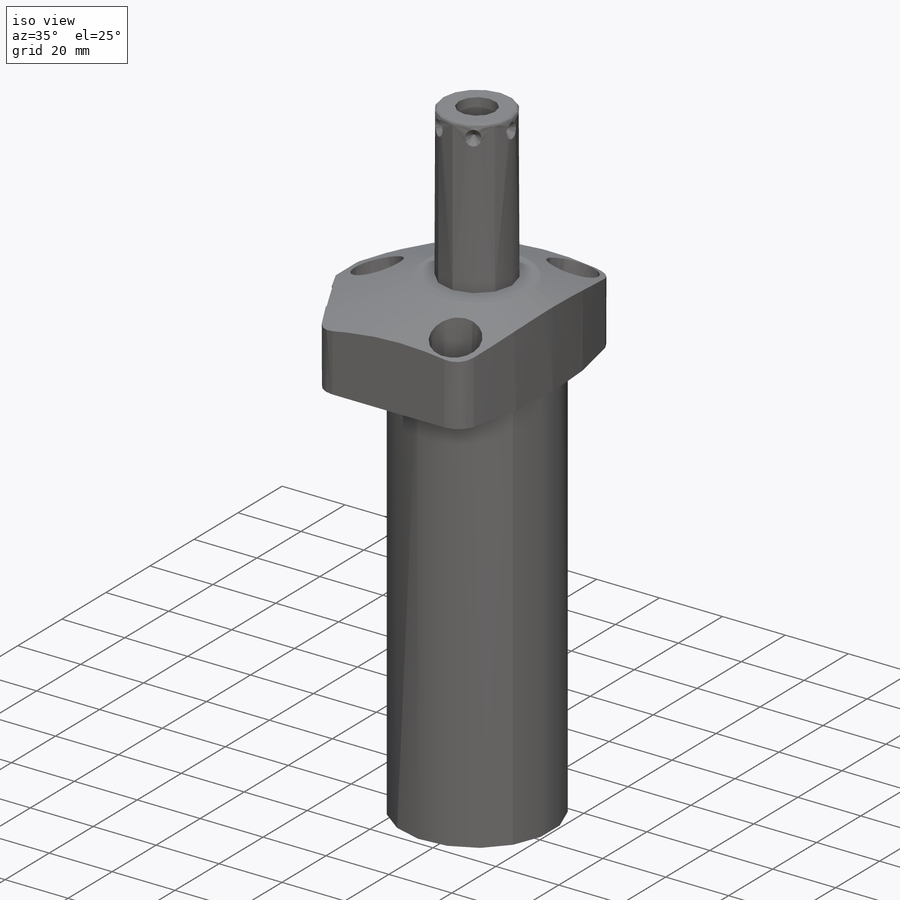
[diagram: iso view]
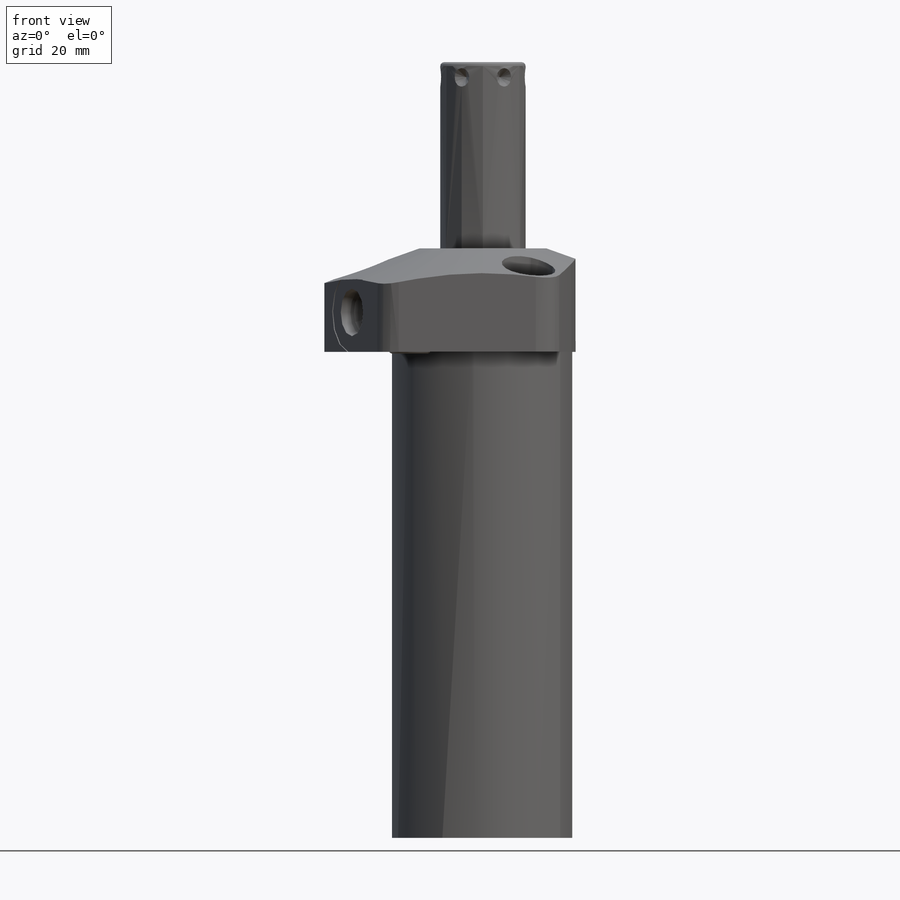
[diagram: front view]
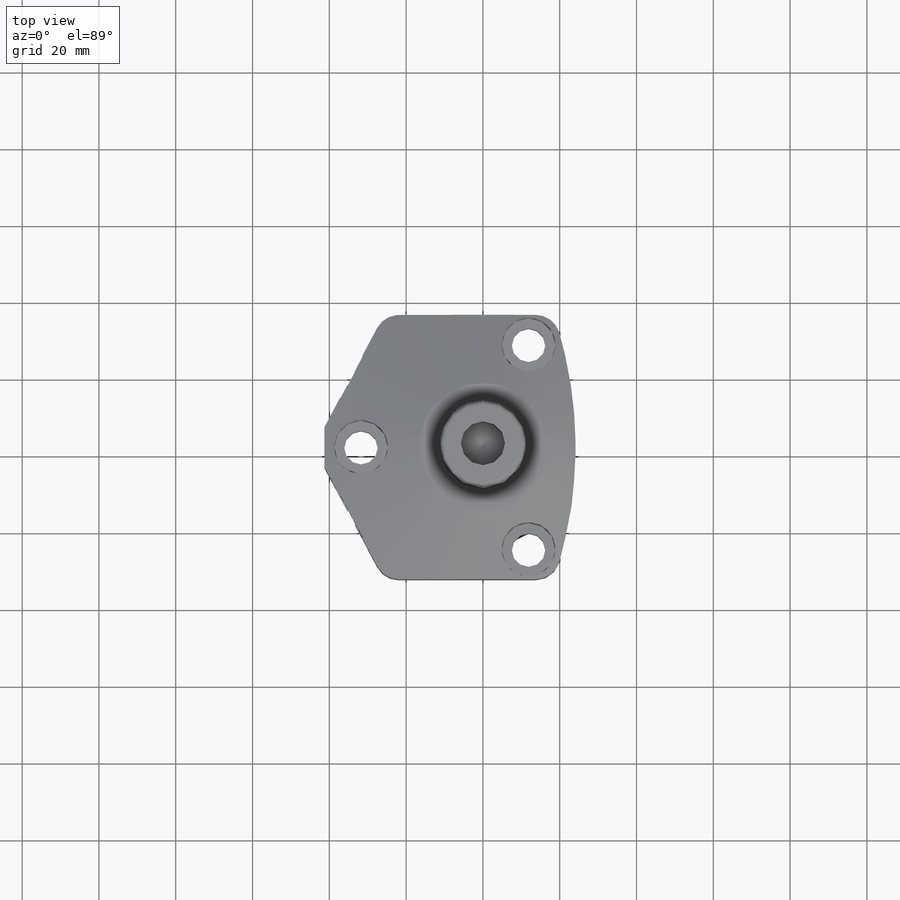
[diagram: top view]
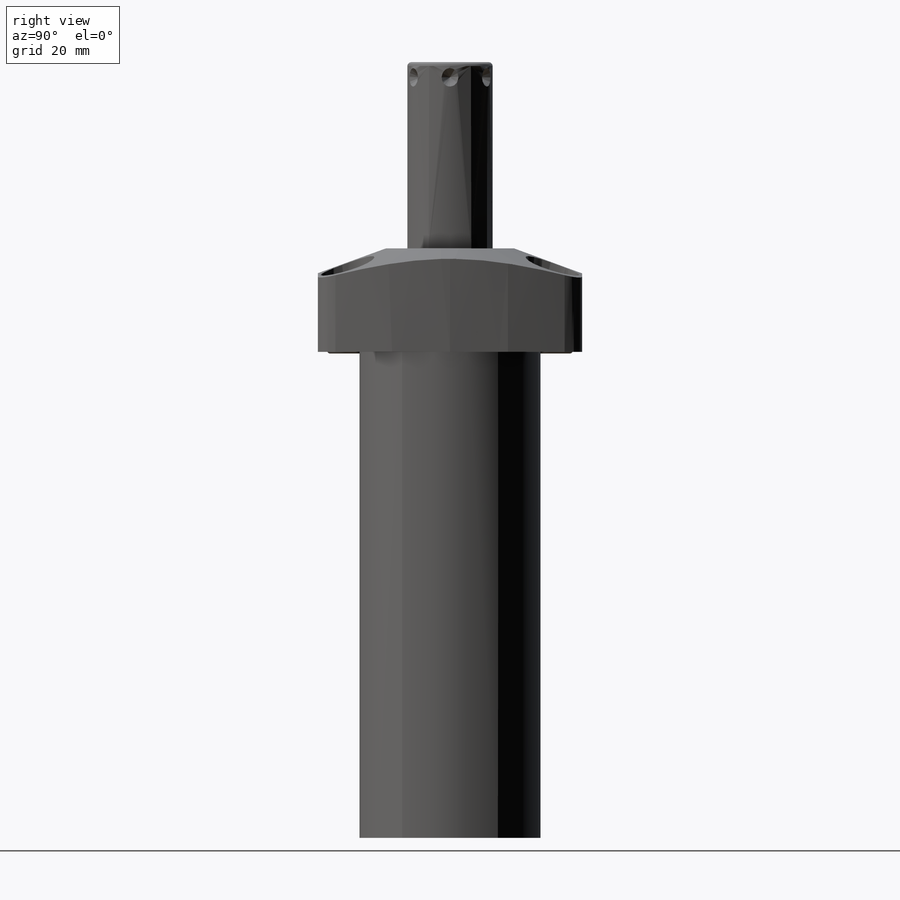
[diagram: right view]
SOLIDWORKS PART (.sldprt)
format: sldprt  version: not decoded by parser v0  size: 501,248 bytes
history: native  units: mm
features: sketch x16, cut_revolve x6, cut_extrude x5, plane x4, revolve x3, fillet x3, mirror x2, material x1, pattern_circular x1, hole x1 (+13 scaffold rows collapsed)
feature tree (55):
  scaffold x13  (default folders/planes/origin — collapsed)
  material  "Alloy Steel"
  sketch  "Sketch1"  dims[D1=153.543mm D2=26.9748mm D3=88.9mm D4=47.371mm]
  revolve  "Revolve1"  Angle=360deg
  sketch  "Sketch2"  dims[D1=68.834mm D2=0.0mm]
  cut_extrude  "Cut-Extrude1"  [1 undecoded]
  sketch  "Sketch3"  dims[c1.D1=~128.32842mm c2.D1=28.0deg c2.D2=38.8874mm c2.D3=0.0mm]
  cut_extrude  "Cut-Extrude2"  Depth=0mm
  sketch  "S2D0002"  dims[D3=106.3752mm D1=82.2452mm D2=41.275mm]
  cut_extrude  "Cut-Extrude3"  [1 undecoded]
  fillet  "Fillet1"  Radius=6.35mm
  fillet  "Fillet2"  Radius=6.35mm
  fillet  "Fillet3"  Radius=6.35mm
  sketch  "Sketch5"  dims[c1.D1=33.274mm c1.D2=~34.151331mm c2.D2=20.0deg c2.D3=47.625mm]
  cut_revolve  "Cut-Revolve1"  Angle=360deg
  plane  "Plane6"
  sketch  "Sketch6"  dims[D1=15.748mm]
  cut_revolve  "Cut-Revolve2"  Angle=360deg
  plane  "Plane7"
  sketch  "Sketch7"  dims[D1=15.748mm]
  cut_revolve  "Cut-Revolve3"  Angle=360deg
  plane  "Plane9"
  sketch  "Sketch9"  dims[c1.D1=12.573mm c1.D2=15.24mm c1.D3=19.05mm c1.D4=~2.116347mm c2.D4=12.0deg c2.D5=~0.922331mm c3.D5=45.0deg c3.D6=2.0701mm c3.D7=9.0932mm c3.D8=6.9088mm]
  cut_revolve  "Cut-Revolve5"  Angle=360deg
  sketch  "Sketch17"  dims[D1=20.955mm]
  cut_extrude  "Cut-Extrude4"  Depth=0.254mm
  sketch  "Sketch18"  dims[D1=11.1252mm]
  cut_extrude  "Cut-Extrude5"  Depth=2.667mm
  mirror  "Mirror1"
  sketch  "Sketch10"  dims[D2=1.016mm D1=75.4634mm D3=22.225mm]
  revolve  "Revolve2"  Angle=360deg
  sketch  "S2D0001"  dims[c1.D1=11.5062mm c1.D2=17.018mm c1.D3=5.7531mm c2.D3=59.0deg]
  cut_revolve  "Cut-Revolve6"  Angle=360deg
  sketch  "Sketch14"  dims[c1.D5=0.889mm c1.D10=0.508mm c1.D1=2.54mm c1.D2=7.9502mm c1.D3=3.175mm c1.D4=10.922mm c1.D6=9.144mm c1.D7=19.05mm c1.D8=0.508mm c1.D9=0.8128mm c2.D10=1.5875mm]
  revolve  "Revolve3"  Angle=360deg
  plane  "Plane14"
  sketch  "Sketch15"  dims[c1.D1=3.9624mm c1.D2=4.826mm c1.D3=2.413mm c2.D3=45.0deg]
  cut_revolve  "Cut-Revolve7"  Angle=360deg
  pattern_circular  "CirPattern1"  Count=6 Angle=360deg
  hole  "Hole1"  Diameter=8.7376mm Depth=26.9748mm
  sketch  "Sketch20"  dims[D1=11.8872mm D2=26.67mm D3=31.75mm]
  sketch  "Sketch19"  dims[Diameter=8.7376mm Depth=26.9748mm C-Bore Diameter=13.9954mm C-Bore Depth=16.6624mm]
  mirror  "Mirror2"
decode coverage: 33 of 37 modeling features carry decoded parameters
note: ~ marks probable driven/reference dimensions
note: 2 parameter values undecoded
note: suppression state not decoded; provenance and decode notes live in map.json
